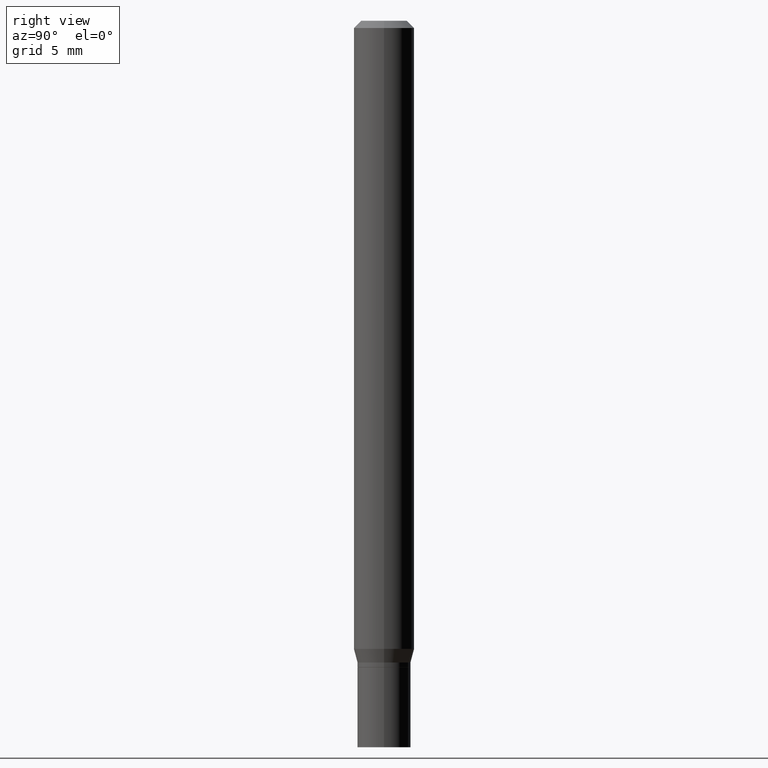
[diagram: clean part render]
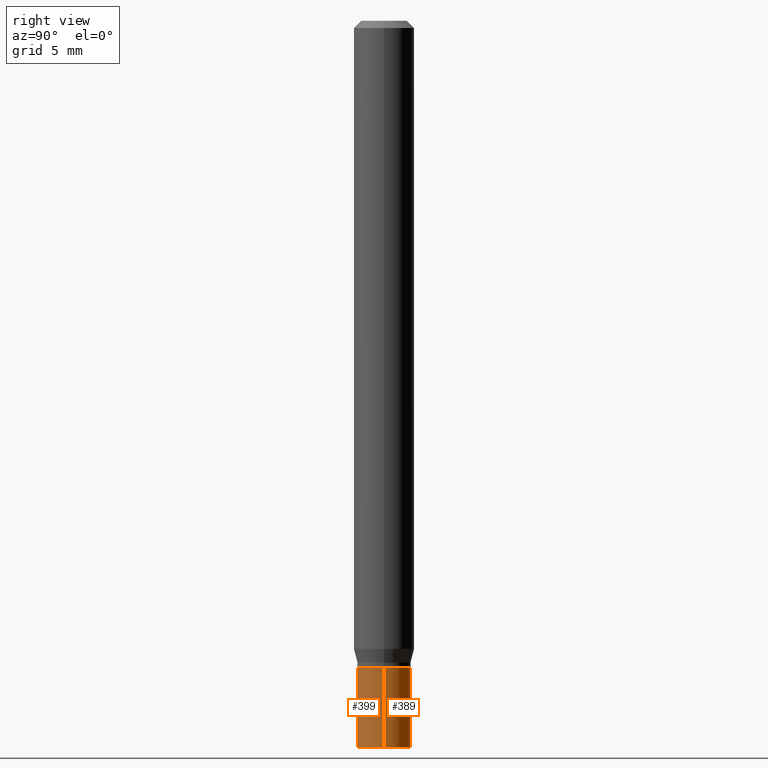
[diagram: same view with one multi-face feature highlighted, each face labeled with its STEP entity id]
A machine part, right view. The highlighted faces form ONE feature: a constant-radius fillet chain: 2 tangent blend faces with common blend radius 1.397 mm. The faces share edges in the B-rep.
Their STEP definitions:
[1] entity #399 (Cylinder):
#4 = VECTOR ( 'NONE', #350, 39.37007874015748143 ) ;
#31 = ORIENTED_EDGE ( 'NONE', *, *, #432, .F. ) ;
#33 = EDGE_CURVE ( 'NONE', #212, #378, #367, .T. ) ;
#35 = LINE ( 'NONE', #427, #4 ) ;
#39 = CYLINDRICAL_SURFACE ( 'NONE', #327, 0.05500000000000000028 ) ;
#106 = ORIENTED_EDGE ( 'NONE', *, *, #33, .T. ) ;
#107 = ORIENTED_EDGE ( 'NONE', *, *, #295, .T. ) ;
#114 = DIRECTION ( 'NONE',  ( 1.000000000000000000, -6.982962677686266711E-15, 4.876176775795935793E-29 ) ) ;
#137 = CARTESIAN_POINT ( 'NONE',  ( 3.264700856257157760E-29, -4.661127587355599122E-15, -1.335000000000000187 ) ) ;
#149 = VERTEX_POINT ( 'NONE', #304 ) ;
#175 = CARTESIAN_POINT ( 'NONE',  ( 3.668203209277704895E-29, -5.237222008264718177E-15, -1.500000000000000222 ) ) ;
#176 = CARTESIAN_POINT ( 'NONE',  ( 0.05500000000000000028, -3.840629472727446888E-16, 2.681897226687764826E-30 ) ) ;
#185 = LINE ( 'NONE', #176, #361 ) ;
#196 = CARTESIAN_POINT ( 'NONE',  ( 0.000000000000000000, 0.000000000000000000, 0.000000000000000000 ) ) ;
#209 = DIRECTION ( 'NONE',  ( 1.000000000000000000, -6.982962677686262766E-15, 0.000000000000000000 ) ) ;
#212 = VERTEX_POINT ( 'NONE', #229 ) ;
#220 = ORIENTED_EDGE ( 'NONE', *, *, #230, .F. ) ;
#229 = CARTESIAN_POINT ( 'NONE',  ( -0.05500000000000000028, -4.558376293142103594E-15, -1.500000000000000222 ) ) ;
#230 = EDGE_CURVE ( 'NONE', #243, #149, #414, .T. ) ;
#243 = VERTEX_POINT ( 'NONE', #306 ) ;
#245 = EDGE_LOOP ( 'NONE', ( #31, #106, #107, #220 ) ) ;
#250 = CARTESIAN_POINT ( 'NONE',  ( 0.05500000000000000028, -5.621284955537463161E-15, -1.500000000000000222 ) ) ;
#295 = EDGE_CURVE ( 'NONE', #378, #149, #185, .T. ) ;
#304 = CARTESIAN_POINT ( 'NONE',  ( 0.05500000000000000028, -5.045190534628344107E-15, -1.335000000000000187 ) ) ;
#306 = CARTESIAN_POINT ( 'NONE',  ( -0.05500000000000000028, -4.558376293142103594E-15, -1.335000000000000187 ) ) ;
#311 = DIRECTION ( 'NONE',  ( -2.445468806185136877E-29, 3.491481338843145188E-15, 1.000000000000000000 ) ) ;
#326 = AXIS2_PLACEMENT_3D ( 'NONE', #175, #371, #336 ) ;
#327 = AXIS2_PLACEMENT_3D ( 'NONE', #196, #398, #114 ) ;
#336 = DIRECTION ( 'NONE',  ( 1.000000000000000000, -6.982962677686262766E-15, 0.000000000000000000 ) ) ;
#350 = DIRECTION ( 'NONE',  ( -2.445468806185136877E-29, 3.491481338843145188E-15, 1.000000000000000000 ) ) ;
#356 = FACE_OUTER_BOUND ( 'NONE', #245, .T. ) ;
#361 = VECTOR ( 'NONE', #311, 39.37007874015748143 ) ;
#367 = CIRCLE ( 'NONE', #326, 0.05500000000000000028 ) ;
#371 = DIRECTION ( 'NONE',  ( -2.445468806185136597E-29, 3.491481338843145583E-15, 1.000000000000000000 ) ) ;
#378 = VERTEX_POINT ( 'NONE', #250 ) ;
#398 = DIRECTION ( 'NONE',  ( -2.445468806185136597E-29, 3.491481338843145583E-15, 1.000000000000000000 ) ) ;
#399 = ADVANCED_FACE ( 'NONE', ( #356 ), #39, .T. ) ;
#407 = AXIS2_PLACEMENT_3D ( 'NONE', #137, #453, #209 ) ;
#414 = CIRCLE ( 'NONE', #407, 0.05500000000000000028 ) ;
#427 = CARTESIAN_POINT ( 'NONE',  ( -0.05500000000000000028, 3.907985046680551042E-16, -2.705414299640198362E-30 ) ) ;
#432 = EDGE_CURVE ( 'NONE', #212, #243, #35, .T. ) ;
#453 = DIRECTION ( 'NONE',  ( -2.445468806185136597E-29, 3.491481338843145583E-15, 1.000000000000000000 ) ) ;
[2] entity #389 (Cylinder):
#4 = VECTOR ( 'NONE', #350, 39.37007874015748143 ) ;
#35 = LINE ( 'NONE', #427, #4 ) ;
#36 = CARTESIAN_POINT ( 'NONE',  ( 0.000000000000000000, 0.000000000000000000, 0.000000000000000000 ) ) ;
#147 = DIRECTION ( 'NONE',  ( 1.000000000000000000, -6.982962677686266711E-15, 4.876176775795935793E-29 ) ) ;
#149 = VERTEX_POINT ( 'NONE', #304 ) ;
#152 = ORIENTED_EDGE ( 'NONE', *, *, #244, .F. ) ;
#171 = CIRCLE ( 'NONE', #425, 0.05500000000000000028 ) ;
#176 = CARTESIAN_POINT ( 'NONE',  ( 0.05500000000000000028, -3.840629472727446888E-16, 2.681897226687764826E-30 ) ) ;
#185 = LINE ( 'NONE', #176, #361 ) ;
#212 = VERTEX_POINT ( 'NONE', #229 ) ;
#223 = CYLINDRICAL_SURFACE ( 'NONE', #318, 0.05500000000000000028 ) ;
#229 = CARTESIAN_POINT ( 'NONE',  ( -0.05500000000000000028, -4.558376293142103594E-15, -1.500000000000000222 ) ) ;
#243 = VERTEX_POINT ( 'NONE', #306 ) ;
#244 = EDGE_CURVE ( 'NONE', #149, #243, #171, .T. ) ;
#250 = CARTESIAN_POINT ( 'NONE',  ( 0.05500000000000000028, -5.621284955537463161E-15, -1.500000000000000222 ) ) ;
#276 = DIRECTION ( 'NONE',  ( -2.445468806185136597E-29, 3.491481338843145583E-15, 1.000000000000000000 ) ) ;
#291 = FACE_OUTER_BOUND ( 'NONE', #394, .T. ) ;
#293 = CIRCLE ( 'NONE', #310, 0.05500000000000000028 ) ;
#295 = EDGE_CURVE ( 'NONE', #378, #149, #185, .T. ) ;
#304 = CARTESIAN_POINT ( 'NONE',  ( 0.05500000000000000028, -5.045190534628344107E-15, -1.335000000000000187 ) ) ;
#306 = CARTESIAN_POINT ( 'NONE',  ( -0.05500000000000000028, -4.558376293142103594E-15, -1.335000000000000187 ) ) ;
#310 = AXIS2_PLACEMENT_3D ( 'NONE', #325, #396, #357 ) ;
#311 = DIRECTION ( 'NONE',  ( -2.445468806185136877E-29, 3.491481338843145188E-15, 1.000000000000000000 ) ) ;
#318 = AXIS2_PLACEMENT_3D ( 'NONE', #36, #359, #147 ) ;
#325 = CARTESIAN_POINT ( 'NONE',  ( 3.668203209277704895E-29, -5.237222008264718177E-15, -1.500000000000000222 ) ) ;
#349 = ORIENTED_EDGE ( 'NONE', *, *, #447, .T. ) ;
#350 = DIRECTION ( 'NONE',  ( -2.445468806185136877E-29, 3.491481338843145188E-15, 1.000000000000000000 ) ) ;
#357 = DIRECTION ( 'NONE',  ( 1.000000000000000000, -6.982962677686262766E-15, 0.000000000000000000 ) ) ;
#359 = DIRECTION ( 'NONE',  ( -2.445468806185136597E-29, 3.491481338843145583E-15, 1.000000000000000000 ) ) ;
#361 = VECTOR ( 'NONE', #311, 39.37007874015748143 ) ;
#376 = CARTESIAN_POINT ( 'NONE',  ( 3.264700856257157760E-29, -4.661127587355599122E-15, -1.335000000000000187 ) ) ;
#378 = VERTEX_POINT ( 'NONE', #250 ) ;
#389 = ADVANCED_FACE ( 'NONE', ( #291 ), #223, .T. ) ;
#394 = EDGE_LOOP ( 'NONE', ( #349, #459, #152, #419 ) ) ;
#396 = DIRECTION ( 'NONE',  ( -2.445468806185136597E-29, 3.491481338843145583E-15, 1.000000000000000000 ) ) ;
#416 = DIRECTION ( 'NONE',  ( 1.000000000000000000, -6.982962677686262766E-15, 0.000000000000000000 ) ) ;
#419 = ORIENTED_EDGE ( 'NONE', *, *, #295, .F. ) ;
#425 = AXIS2_PLACEMENT_3D ( 'NONE', #376, #276, #416 ) ;
#427 = CARTESIAN_POINT ( 'NONE',  ( -0.05500000000000000028, 3.907985046680551042E-16, -2.705414299640198362E-30 ) ) ;
#432 = EDGE_CURVE ( 'NONE', #212, #243, #35, .T. ) ;
#447 = EDGE_CURVE ( 'NONE', #378, #212, #293, .T. ) ;
#459 = ORIENTED_EDGE ( 'NONE', *, *, #432, .T. ) ;